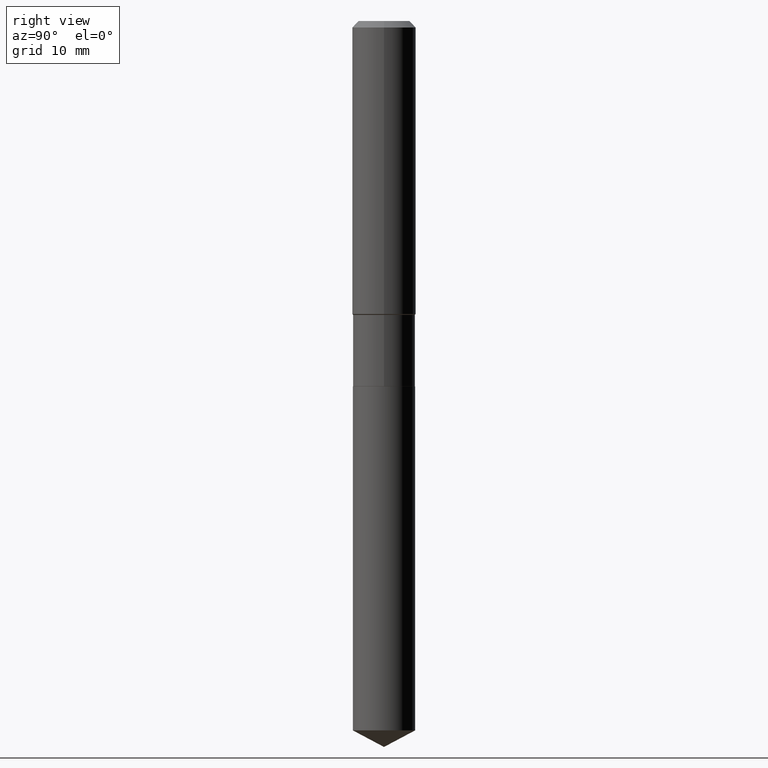
[diagram: clean part render]
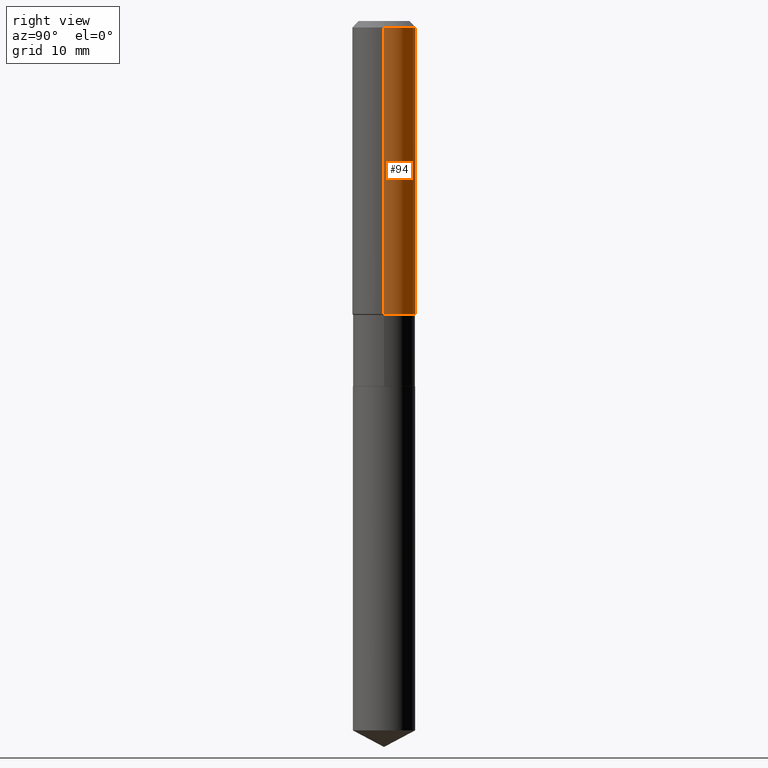
[diagram: same view with one face highlighted and labeled with its STEP entity id]
A machine part, right view. The second image highlights one B-rep face of the part: STEP entity #94.
In plain terms, the highlighted cylindrical surface (edge-blend (fillet) strip) has radius 4.0005 mm, axis along (-0, 0, 1).
Its self-contained STEP definition (entity closure, byte-faithful):
#5 = CARTESIAN_POINT ( 'NONE',  ( 0.1575000000000001676, -6.148673211769718717E-15, -1.446050000000000058 ) ) ;
#7 = VECTOR ( 'NONE', #409, 39.37007874015748143 ) ;
#10 = LINE ( 'NONE', #465, #388 ) ;
#13 = CIRCLE ( 'NONE', #239, 0.1575000000000001676 ) ;
#47 = CARTESIAN_POINT ( 'NONE',  ( 0.000000000000000000, 0.000000000000000000, 0.000000000000000000 ) ) ;
#57 = DIRECTION ( 'NONE',  ( -2.445468806185136597E-29, 3.491481338843145583E-15, 1.000000000000000000 ) ) ;
#69 = ORIENTED_EDGE ( 'NONE', *, *, #157, .T. ) ;
#94 = ADVANCED_FACE ( 'NONE', ( #420 ), #384, .T. ) ;
#97 = CARTESIAN_POINT ( 'NONE',  ( 0.1575000000000000011, -1.209798283909146741E-15, -0.03150000000000019451 ) ) ;
#98 = VERTEX_POINT ( 'NONE', #5 ) ;
#102 = AXIS2_PLACEMENT_3D ( 'NONE', #313, #57, #241 ) ;
#124 = DIRECTION ( 'NONE',  ( -2.445468806185136597E-29, 3.491481338843145583E-15, 1.000000000000000000 ) ) ;
#142 = VERTEX_POINT ( 'NONE', #267 ) ;
#146 = LINE ( 'NONE', #193, #7 ) ;
#157 = EDGE_CURVE ( 'NONE', #98, #175, #13, .T. ) ;
#167 = CIRCLE ( 'NONE', #102, 0.1575000000000000011 ) ;
#175 = VERTEX_POINT ( 'NONE', #350 ) ;
#193 = CARTESIAN_POINT ( 'NONE',  ( 0.1575000000000000844, -1.099816621735587677E-15, 7.679978421878603638E-30 ) ) ;
#194 = DIRECTION ( 'NONE',  ( -2.445468806185136597E-29, 3.491481338843145583E-15, 1.000000000000000000 ) ) ;
#239 = AXIS2_PLACEMENT_3D ( 'NONE', #311, #124, #390 ) ;
#241 = DIRECTION ( 'NONE',  ( 1.000000000000000000, -6.982962677686265922E-15, 0.000000000000000000 ) ) ;
#245 = ORIENTED_EDGE ( 'NONE', *, *, #400, .F. ) ;
#267 = CARTESIAN_POINT ( 'NONE',  ( -0.1575000000000000011, -1.460314317281686560E-15, -0.03150000000000019451 ) ) ;
#286 = ORIENTED_EDGE ( 'NONE', *, *, #393, .T. ) ;
#308 = EDGE_CURVE ( 'NONE', #98, #441, #146, .T. ) ;
#311 = CARTESIAN_POINT ( 'NONE',  ( 3.536270167184016952E-29, -5.048856590034130447E-15, -1.446050000000000058 ) ) ;
#313 = CARTESIAN_POINT ( 'NONE',  ( 7.703226739483226971E-31, -1.099816621735597538E-16, -0.03150000000000019451 ) ) ;
#316 = AXIS2_PLACEMENT_3D ( 'NONE', #47, #194, #346 ) ;
#320 = EDGE_LOOP ( 'NONE', ( #69, #286, #245, #403 ) ) ;
#346 = DIRECTION ( 'NONE',  ( 1.000000000000000000, -6.982962677686267499E-15, 4.876176775795936353E-29 ) ) ;
#350 = CARTESIAN_POINT ( 'NONE',  ( -0.1575000000000001676, -3.929751781211971266E-15, -1.446050000000000058 ) ) ;
#384 = CYLINDRICAL_SURFACE ( 'NONE', #316, 0.1575000000000000844 ) ;
#388 = VECTOR ( 'NONE', #466, 39.37007874015748143 ) ;
#390 = DIRECTION ( 'NONE',  ( 1.000000000000000000, -6.982962677686267499E-15, 0.000000000000000000 ) ) ;
#393 = EDGE_CURVE ( 'NONE', #175, #142, #10, .T. ) ;
#400 = EDGE_CURVE ( 'NONE', #441, #142, #167, .T. ) ;
#403 = ORIENTED_EDGE ( 'NONE', *, *, #308, .F. ) ;
#409 = DIRECTION ( 'NONE',  ( -2.445468806185136877E-29, 3.491481338843145188E-15, 1.000000000000000000 ) ) ;
#420 = FACE_OUTER_BOUND ( 'NONE', #320, .T. ) ;
#441 = VERTEX_POINT ( 'NONE', #97 ) ;
#465 = CARTESIAN_POINT ( 'NONE',  ( -0.1575000000000000844, 1.119104808822158392E-15, -7.747322767151481189E-30 ) ) ;
#466 = DIRECTION ( 'NONE',  ( -2.445468806185136877E-29, 3.491481338843145188E-15, 1.000000000000000000 ) ) ;